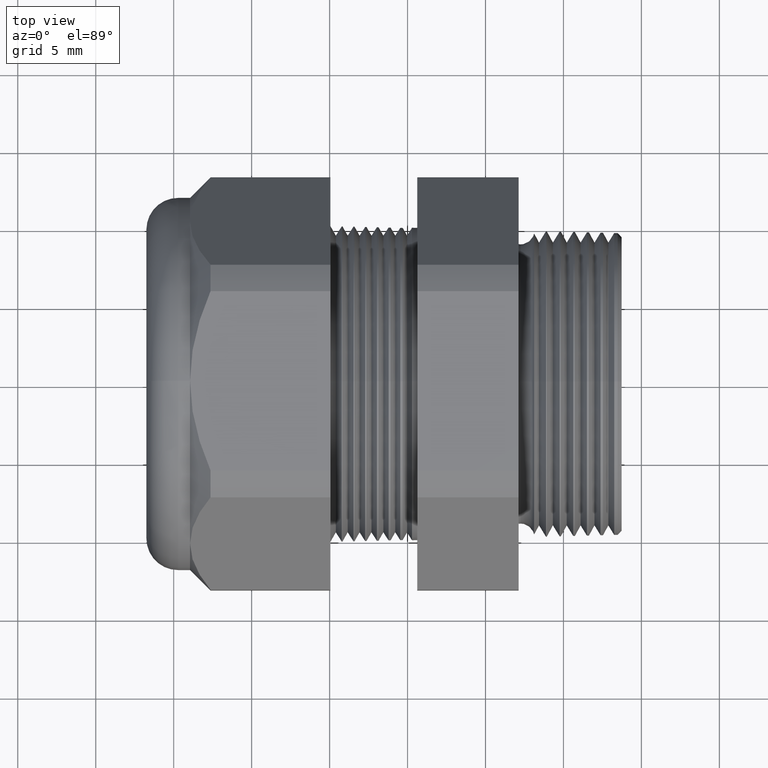
[diagram: clean part render]
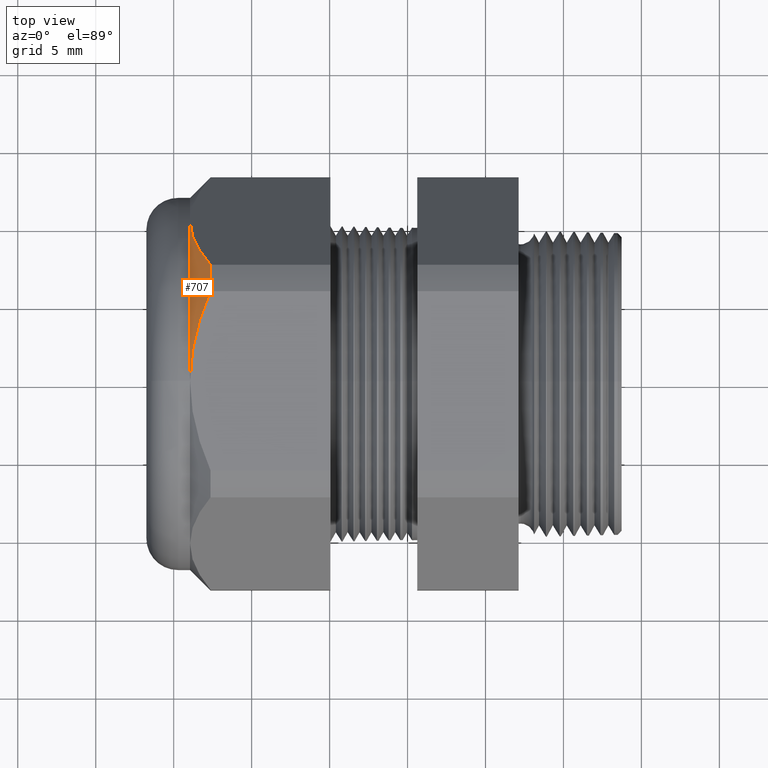
[diagram: same view with one face highlighted and labeled with its STEP entity id]
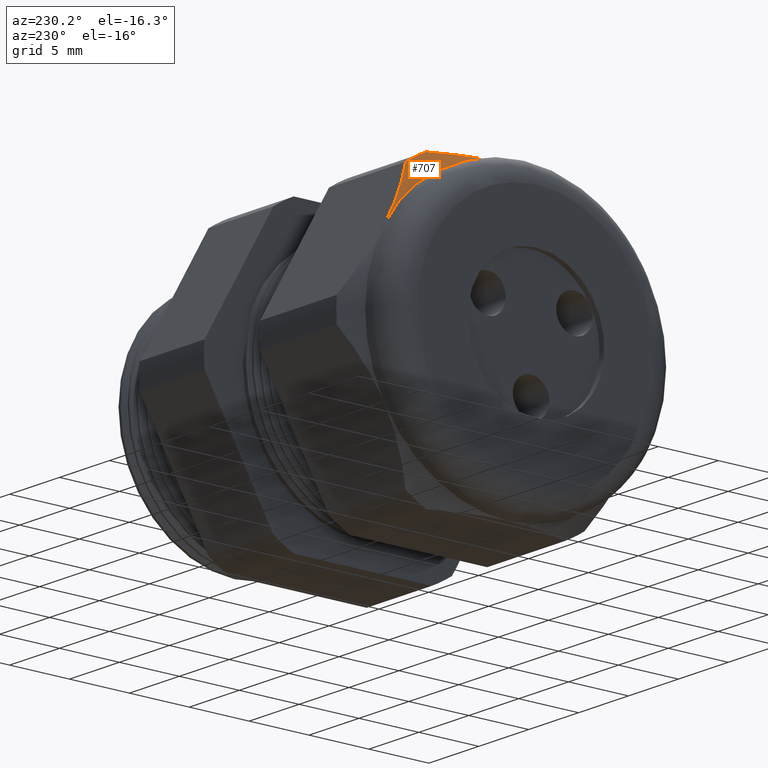
[diagram: same view with one face highlighted and labeled with its STEP entity id]
A machine part, top view. The second image highlights one B-rep face of the part: STEP entity #707.
A second angle (auxiliary view) of the same face is appended — the face is thin or edge-on in the first view.
In plain terms, the highlighted conical surface has half-angle 45 deg.
Its self-contained STEP definition (entity closure, byte-faithful):
#22 = EDGE_CURVE ( 'NONE', #273, #3921, #1120, .T. ) ;
#273 = VERTEX_POINT ( 'NONE', #1593 ) ;
#278 = EDGE_CURVE ( 'NONE', #273, #280, #1587, .T. ) ;
#280 = VERTEX_POINT ( 'NONE', #1582 ) ;
#346 = VERTEX_POINT ( 'NONE', #1709 ) ;
#352 = EDGE_CURVE ( 'NONE', #346, #280, #1756, .T. ) ;
#707 = ADVANCED_FACE ( 'NONE', ( #2324 ), #2323, .T. ) ;
#708 = EDGE_LOOP ( 'NONE', ( #709, #710, #711, #712 ) ) ;
#709 = ORIENTED_EDGE ( 'NONE', *, *, #3923, .F. ) ;
#710 = ORIENTED_EDGE ( 'NONE', *, *, #22, .F. ) ;
#711 = ORIENTED_EDGE ( 'NONE', *, *, #278, .T. ) ;
#712 = ORIENTED_EDGE ( 'NONE', *, *, #352, .F. ) ;
#1112 = CARTESIAN_POINT ( 'NONE',  ( -1.088063779527558500, 0.2938165587564946500, 0.4310947921287050500 ) ) ;
#1113 = CARTESIAN_POINT ( 'NONE',  ( -1.103717189021965700, 0.3118494083116969400, 0.3998609804938485500 ) ) ;
#1114 = CARTESIAN_POINT ( 'NONE',  ( -1.116822062588142200, 0.3304876304616241600, 0.3675786327674192600 ) ) ;
#1115 = CARTESIAN_POINT ( 'NONE',  ( -1.134818111347314400, 0.3682441305491640500, 0.3021824562998213800 ) ) ;
#1116 = CARTESIAN_POINT ( 'NONE',  ( -1.139763779527558600, 0.3874426189162283900, 0.2689296990195457800 ) ) ;
#1117 = CARTESIAN_POINT ( 'NONE',  ( -1.139763779527558600, 0.4070319397786862900, 0.2349999999999999900 ) ) ;
#1120 = B_SPLINE_CURVE_WITH_KNOTS ( 'NONE', 3,
 ( #1117, #1116, #1115, #1114, #1113, #1112 ),
 .UNSPECIFIED., .F., .F.,
 ( 4, 2, 4 ),
 ( 0.005903107334592308200, 0.008852512982428773600, 0.01180191863026523600 ),
 .UNSPECIFIED. ) ;
#1582 = CARTESIAN_POINT ( 'NONE',  ( -1.139763779527558600, 0.0000000000000000000, 0.4699999999999999700 ) ) ;
#1583 = DIRECTION ( 'NONE',  ( 0.0000000000000000000, 0.0000000000000000000, -1.000000000000000000 ) ) ;
#1584 = DIRECTION ( 'NONE',  ( 1.000000000000000000, 0.0000000000000000000, 0.0000000000000000000 ) ) ;
#1585 = CARTESIAN_POINT ( 'NONE',  ( -1.139763779527558600, 0.0000000000000000000, 0.0000000000000000000 ) ) ;
#1586 = AXIS2_PLACEMENT_3D ( 'NONE', #1585, #1584, #1583 ) ;
#1587 = CIRCLE ( 'NONE', #1586, 0.4699999999999999200 ) ;
#1593 = CARTESIAN_POINT ( 'NONE',  ( -1.139763779527558600, 0.4070319397786862900, 0.2349999999999999900 ) ) ;
#1709 = CARTESIAN_POINT ( 'NONE',  ( -1.088063779527558500, 0.2264307620443833400, 0.4700000000000000300 ) ) ;
#1744 = CARTESIAN_POINT ( 'NONE',  ( -1.139763779527558600, 0.0000000000000000000, 0.4699999999999999700 ) ) ;
#1745 = CARTESIAN_POINT ( 'NONE',  ( -1.139763779527558600, 0.01964242875915811100, 0.4699999999999999200 ) ) ;
#1746 = CARTESIAN_POINT ( 'NONE',  ( -1.138517019735540500, 0.03924163778662349800, 0.4699999999999999700 ) ) ;
#1747 = CARTESIAN_POINT ( 'NONE',  ( -1.133749478914867900, 0.07782038235249975900, 0.4699999999999997500 ) ) ;
#1748 = CARTESIAN_POINT ( 'NONE',  ( -1.130231001418866300, 0.09688970369981485300, 0.4699999999999999700 ) ) ;
#1749 = CARTESIAN_POINT ( 'NONE',  ( -1.121202062721104300, 0.1346420459264779700, 0.4699999999999999200 ) ) ;
#1750 = CARTESIAN_POINT ( 'NONE',  ( -1.115692781244512800, 0.1533252955870069400, 0.4700000000000000300 ) ) ;
#1751 = CARTESIAN_POINT ( 'NONE',  ( -1.102974602953725300, 0.1903621927138393300, 0.4699999999999999200 ) ) ;
#1752 = CARTESIAN_POINT ( 'NONE',  ( -1.095800509309332400, 0.2086052162099338000, 0.4699999999999998600 ) ) ;
#1753 = CARTESIAN_POINT ( 'NONE',  ( -1.088063779527558500, 0.2264307620443833400, 0.4700000000000000300 ) ) ;
#1756 = B_SPLINE_CURVE_WITH_KNOTS ( 'NONE', 3,
 ( #1753, #1752, #1751, #1750, #1749, #1748, #1747, #1746, #1745, #1744 ),
 .UNSPECIFIED., .F., .F.,
 ( 4, 2, 2, 2, 4 ),
 ( 0.009140358755258091600, 0.01061001397932214400, 0.01207966920338619500, 0.01354932442745024500, 0.01501897965151429600 ),
 .UNSPECIFIED. ) ;
#2319 = DIRECTION ( 'NONE',  ( 0.0000000000000000000, 0.0000000000000000000, 1.000000000000000000 ) ) ;
#2320 = DIRECTION ( 'NONE',  ( 1.000000000000000000, 0.0000000000000000000, 0.0000000000000000000 ) ) ;
#2321 = AXIS2_PLACEMENT_3D ( 'NONE', #2328, #2320, #2319 ) ;
#2323 = CONICAL_SURFACE ( 'NONE', #2321, 0.4699999999999997500, 0.7853981633974501700 ) ;
#2324 = FACE_OUTER_BOUND ( 'NONE', #708, .T. ) ;
#2328 = CARTESIAN_POINT ( 'NONE',  ( -1.139763779527558600, 0.0000000000000000000, 0.0000000000000000000 ) ) ;
#3521 = DIRECTION ( 'NONE',  ( 0.0000000000000000000, 0.0000000000000000000, -1.000000000000000000 ) ) ;
#3522 = DIRECTION ( 'NONE',  ( 1.000000000000000000, 0.0000000000000000000, 0.0000000000000000000 ) ) ;
#3523 = CARTESIAN_POINT ( 'NONE',  ( -1.088063779527558500, 0.0000000000000000000, 0.0000000000000000000 ) ) ;
#3524 = AXIS2_PLACEMENT_3D ( 'NONE', #3523, #3522, #3521 ) ;
#3525 = CIRCLE ( 'NONE', #3524, 0.5217000000000000500 ) ;
#3526 = CARTESIAN_POINT ( 'NONE',  ( -1.088063779527558500, 0.2938165587564946500, 0.4310947921287050500 ) ) ;
#3921 = VERTEX_POINT ( 'NONE', #3526 ) ;
#3923 = EDGE_CURVE ( 'NONE', #3921, #346, #3525, .T. ) ;